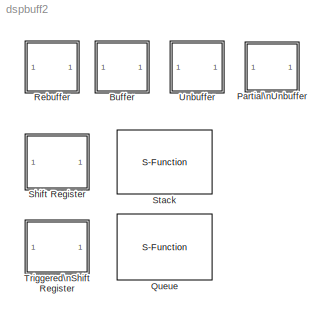
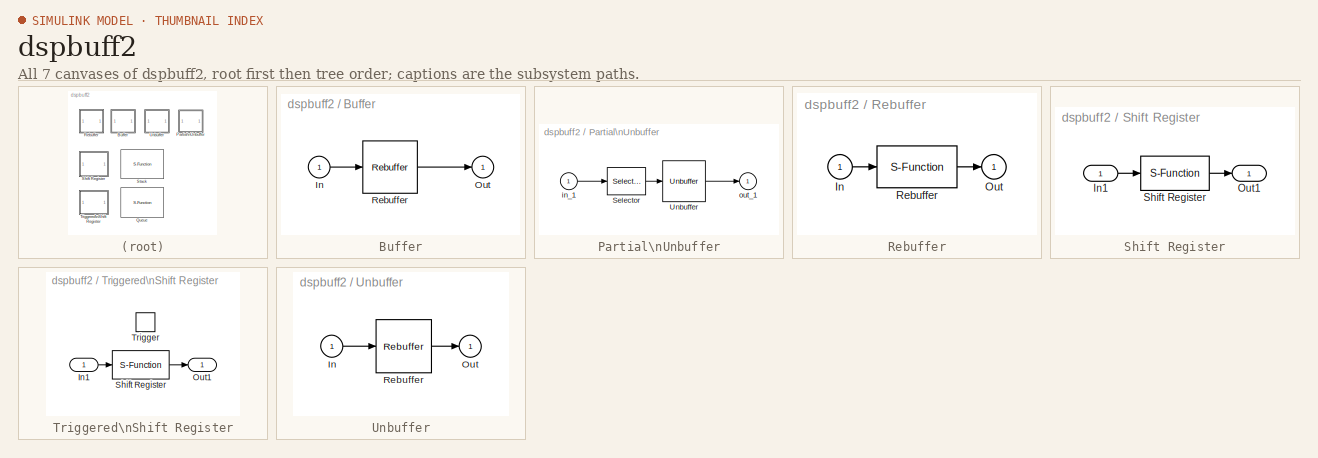
[diagram: thumbnail index - all 7 canvases of the model, root first then tree order]
MODEL dspbuff2
KIND library
BLOCK [SubSystem] Buffer
  MaskCallbackString = ||
  MaskDescription = Convert scalar samples to a frame output at a lower sample rate.
  MaskDisplay = plot(x,y)
  MaskEnableString = on,on,on
  MaskHelp = web(dspbhelp);
  MaskIconFrame = on
  MaskIconOpaque = on
  MaskIconRotate = none
  MaskIconUnits = autoscale
  MaskInitialization = [x,y] = dspblkbuff('icon');\n
  MaskPromptString = Buffer size:|Buffer overlap:|Initial conditions:
  MaskSelfModifiable = on
  MaskStyleString = edit,edit,edit
  MaskTunableValueString = off,off,off
  MaskType = Buffer
  MaskValueString = 32|0|0
  MaskVariables = N=@1;V=@2;ic=@3;
  MaskVisibilityString = on,on,on
  Ports = [1, 1]
  RTWFcnNameOpts = Auto
  RTWFileNameOpts = Auto
  RTWSystemCode = Auto
  ShowPortLabels = on
  TreatAsAtomicUnit = off
BLOCK [Inport] Buffer/In
  Interpolate = on
  Port = 1
BLOCK [Outport] Buffer/Out
  InitialOutput = 0
  OutputWhenDisabled = held
  Port = 1
BLOCK [Reference] Buffer/Rebuffer  REF=dspbuff2/Rebuffer
  N = N
  Ports = [1, 1]
  SourceBlock = dspbuff2/Rebuffer
  SourceType = Rebuffer
  Specify_Out_Size = on
  V = V
  frame = off
  ic = ic
  num_chans = 1
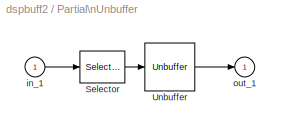
BLOCK [SubSystem] Partial\nUnbuffer
  MaskCallbackString = ||||
  MaskDescription = Convert selected portion of a frame to scalar samples output at a higher sample rate.
  MaskDisplay = plot(0,0,100,100,[62 68 68 72 68 68],[24 24 26 24 22 24],[36 36 56 49 56 49],[32 24 24 16 24 32],[20 52 52 20 20],[88 88 36 36 88],[28 44],[80 80],[28 44],[72 72],[28 44],[64 64],[28 44],[56 56],[28 44],[48 48],[72 76 76 80 76 76],[24 24 26 24 22 24],[80 84 84 88 84 84],[24 24 26 24 22 24],[],[],[],[],[88 88 92],[24 24 24])
  MaskEnableString = on,on,on,on,on
  MaskHelp = web(dspbhelp);
  MaskIconFrame = on
  MaskIconOpaque = on
  MaskIconRotate = none
  MaskIconUnits = autoscale
  MaskInitialization = elements=repmat(0:N:(num_chans-1)*N,N2-N1+1,1);\nelements=elements(:)';\nelements=elements + repmat(N1:N2,1,num_chans);
  MaskPromptString = Buffer size:|First output index:|Last output index:|Initial conditions:|Number of channels
  MaskStyleString = edit,edit,edit,edit,edit
  MaskTunableValueString = off,off,off,off,off
  MaskType = Partial Unbuffer
  MaskValueString = 32|13|20|0|1
  MaskVariables = N=@1;N1=@2;N2=@3;ic=@4;num_chans=@5;
  MaskVisibilityString = on,on,on,on,on
  Ports = [1, 1]
  RTWFcnNameOpts = Auto
  RTWFileNameOpts = Auto
  RTWSystemCode = Auto
  ShowPortLabels = on
  TreatAsAtomicUnit = off
BLOCK [Selector] Partial\nUnbuffer/Selector
  ColumnSrc = Internal
  Columns = 1
  ElementSrc = Internal
  Elements = elements
  InputPortWidth = N*num_chans
  InputType = Vector
  Ports = [1, 1]
  RowSrc = Internal
  Rows = 1
BLOCK [Reference] Partial\nUnbuffer/Unbuffer  REF=dspbuff2/Unbuffer
  Ports = [1, 1]
  SourceBlock = dspbuff2/Unbuffer
  SourceType = Unbuffer
  ic = ic
  num_chans = num_chans
BLOCK [Inport] Partial\nUnbuffer/in_1
  Interpolate = on
  Port = 1
BLOCK [Outport] Partial\nUnbuffer/out_1
  InitialOutput = 0
  OutputWhenDisabled = held
  Port = 1
BLOCK [S-Function] Queue
  FunctionName = sdspqueue
  MaskCallbackString = ||||||||
  MaskDescription = Implements a queue, or \"First In, First Out\" (FIFO) register.
  MaskDisplay = disp('Queue');\n\nport_label('input',si(1).port, si(1).txt);\nport_label('input',si(2).port, si(2).txt);\nport_label('input',si(3).port, si(3).txt);\nport_label('input',si(4).port, si(4).txt);\n\nport_label('output',so(1).port, so(1).txt);\nport_label('output',so(2).port, so(2).txt);\nport_label('output',so(3).port, so(3).txt);\nport_label('output',so(4).port, so(4).txt);\n
  MaskEnableString = on,on,on,on,on,on,on,on,on
  MaskHelp = web(dspbhelp);\n
  MaskIconFrame = on
  MaskIconOpaque = on
  MaskIconRotate = port
  MaskIconUnits = normalized
  MaskInitialization = [si,so] = dspblkstack('icon', clr,eso,fso,nso);
  MaskPromptString = Register size:|Trigger type:|Push onto full register:|Pop empty register:|Empty register output|Full register output|Output number of register entries|Clear input|Clear output port on reset
  MaskSelfModifiable = on
  MaskStyleString = edit,popup(Rising edge|Falling edge|Either edge),popup(Dynamic reallocation|Ignore|Warning|Error),popup(Ignore|Warning|Error),checkbox,checkbox,checkbox,checkbox,checkbox
  MaskTunableValueString = off,off,off,on,off,off,off,off,on
  MaskType = Queue
  MaskValueString = 8|Rising edge|Dynamic reallocation|Warning|off|off|off|off|off
  MaskVariables = depth=@1;trigger=@2;overflow=@3;pes=@4;eso=@5;fso=@6;nso=@7;clr=@8;clrOutport=@9;
  MaskVisibilityString = on,on,on,on,on,on,on,on,on
  Parameters = trigger,depth,overflow,pes,eso,fso,nso,clr,clrOutport
  PortCounts = []
  Ports = [3, 1]
BLOCK [SubSystem] Rebuffer
  MaskCallbackString = dspblkrebuff||||dspblkrebuff|
  MaskDescription = Convert a frame to a smaller or larger size with optional overlap.\nFor calculation of sample delay, see the rebuffer_delay function.
  MaskDisplay = disp('Rebuffer')
  MaskEnableString = on,on,on,on,on,off
  MaskHelp = web(dspbhelp);
  MaskIconFrame = on
  MaskIconOpaque = on
  MaskIconRotate = none
  MaskIconUnits = autoscale
  MaskPromptString = Specify output buffer size|Output buffer size (per channel):|Buffer overlap:|Initial conditions:|Frame-based inputs|Number of channels:
  MaskSelfModifiable = on
  MaskStyleString = checkbox,edit,edit,edit,checkbox,edit
  MaskTunableValueString = on,off,off,off,on,off
  MaskType = Rebuffer
  MaskValueString = on|64|0|0|off|1
  MaskVariables = Specify_Out_Size=@1;N=@2;V=@3;ic=@4;frame=@5;num_chans=@6;
  MaskVisibilityString = on,on,on,on,on,on
  Ports = [1, 1]
  RTWFcnNameOpts = Auto
  RTWFileNameOpts = Auto
  RTWSystemCode = Auto
  ShowPortLabels = on
  TreatAsAtomicUnit = off
BLOCK [Inport] Rebuffer/In
  Interpolate = on
  Port = 1
BLOCK [Outport] Rebuffer/Out
  InitialOutput = 0
  OutputWhenDisabled = held
  Port = 1
BLOCK [S-Function] Rebuffer/Rebuffer
  FunctionName = sdsprebuff
  Parameters = Specify_Out_Size,N,V,ic,frame,num_chans
  PortCounts = []
  Ports = [1, 1]
BLOCK [SubSystem] Shift Register
  MaskCallbackString = |
  MaskDescription = Shift contents of memory register and store input sample into start of register.  Vector inputs are stored into independent shift registers.
  MaskDisplay = disp('Shift\\nRegister');
  MaskEnableString = on,on
  MaskHelp = web(dspbhelp);\n
  MaskIconFrame = on
  MaskIconOpaque = on
  MaskIconRotate = none
  MaskIconUnits = autoscale
  MaskPromptString = Register size:|Initial condition:
  MaskStyleString = edit,edit
  MaskTunableValueString = off,off
  MaskType = Shift Register
  MaskValueString = 64|0
  MaskVariables = siz=@1;ic=@2;
  MaskVisibilityString = on,on
  Ports = [1, 1]
  RTWFcnNameOpts = Auto
  RTWFileNameOpts = Auto
  RTWSystemCode = Auto
  ShowPortLabels = on
  TreatAsAtomicUnit = off
BLOCK [Inport] Shift Register/In1
  Interpolate = on
  Port = 1
BLOCK [Outport] Shift Register/Out1
  InitialOutput = 0
  OutputWhenDisabled = held
  Port = 1
BLOCK [S-Function] Shift Register/Shift Register
  FunctionName = sdspsreg
  Parameters = siz,ic
  PortCounts = []
  Ports = [1, 1]
BLOCK [S-Function] Stack
  FunctionName = sdspstack
  MaskCallbackString = ||||||||
  MaskDescription = Implements a stack, or \"Last In, First Out\" (LIFO) register.
  MaskDisplay = disp('Stack');\n\nport_label('input',si(1).port, si(1).txt);\nport_label('input',si(2).port, si(2).txt);\nport_label('input',si(3).port, si(3).txt);\nport_label('input',si(4).port, si(4).txt);\n\nport_label('output',so(1).port, so(1).txt);\nport_label('output',so(2).port, so(2).txt);\nport_label('output',so(3).port, so(3).txt);\nport_label('output',so(4).port, so(4).txt);\n
  MaskEnableString = on,on,on,on,on,on,on,on,on
  MaskHelp = web(dspbhelp);\n
  MaskIconFrame = on
  MaskIconOpaque = on
  MaskIconRotate = port
  MaskIconUnits = normalized
  MaskInitialization = [si,so] = dspblkstack('icon', clr,eso,fso,nso);\n
  MaskPromptString = Stack depth:|Trigger type:|Push full stack:|Pop empty stack:|Empty stack output|Full stack output|Output number of stack entries|Clear input|Clear output port on reset
  MaskSelfModifiable = on
  MaskStyleString = edit,popup(Rising edge|Falling edge|Either edge),popup(Dynamic reallocation|Ignore|Warning|Error),popup(Ignore|Warning|Error),checkbox,checkbox,checkbox,checkbox,checkbox
  MaskTunableValueString = off,off,off,on,off,off,off,off,on
  MaskType = Stack
  MaskValueString = 8|Rising edge|Dynamic reallocation|Warning|off|off|off|off|off
  MaskVariables = depth=@1;trigger=@2;overflow=@3;pes=@4;eso=@5;fso=@6;nso=@7;clr=@8;clrOutport=@9;
  MaskVisibilityString = on,on,on,on,on,on,on,on,on
  Parameters = trigger,depth,overflow,pes,eso,fso,nso,clr,clrOutport
  PortCounts = []
  Ports = [3, 1]
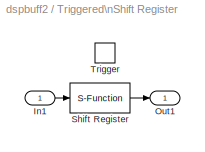
BLOCK [SubSystem] Triggered\nShift Register
  MaskCallbackString = ||
  MaskDescription = Shift contents of memory register and store input sample into start of register when trigger event occurs.  Vector inputs are stored into independent shift registers.
  MaskDisplay = disp('Shift\\nRegister');
  MaskEnableString = on,on,on
  MaskHelp = web(dspbhelp);\n
  MaskIconFrame = on
  MaskIconOpaque = off
  MaskIconRotate = none
  MaskIconUnits = autoscale
  MaskInitialization = switch trig\ncase 1, s='rising';\ncase 2, s='falling';\ncase 3, s='either';\nend\nset_param([gcb '/Trigger'],'triggertype',s);\n
  MaskPromptString = Trigger type:|Register size:|Initial condition:
  MaskSelfModifiable = on
  MaskStyleString = popup(Rising edge|Falling edge|Either edge),edit,edit
  MaskTunableValueString = off,off,off
  MaskType = Triggered Shift Register
  MaskValueString = Rising edge|64|0
  MaskVariables = trig=@1;siz=@2;ic=@3;
  MaskVisibilityString = on,on,on
  Ports = [1, 1, 0, 1]
  RTWFcnNameOpts = Auto
  RTWFileNameOpts = Auto
  RTWSystemCode = Auto
  ShowPortLabels = on
  TreatAsAtomicUnit = on
BLOCK [Inport] Triggered\nShift Register/In1
  Interpolate = on
  Port = 1
BLOCK [Outport] Triggered\nShift Register/Out1
  InitialOutput = ic
  OutputWhenDisabled = held
  Port = 1
BLOCK [S-Function] Triggered\nShift Register/Shift Register
  FunctionName = sdspsreg
  Parameters = siz,ic
  PortCounts = []
  Ports = [1, 1]
BLOCK [TriggerPort] Triggered\nShift Register/Trigger
  OutputDataType = auto
  ShowOutputPort = off
  TriggerType = rising
BLOCK [SubSystem] Unbuffer
  MaskCallbackString = |
  MaskDescription = Convert a frame to scalar samples output at a higher sample rate.
  MaskDisplay = plot(0,0,100,100,[62 68 68 72 68 68],[24 24 26 24 22 24],[36 36 56 49 56 49],[32 24 24 16 24 32],[20 52 52 20 20],[88 88 36 36 88],[28 44],[80 80],[28 44],[72 72],[28 44],[64 64],[28 44],[56 56],[28 44],[48 48],[72 76 76 80 76 76],[24 24 26 24 22 24],[80 84 84 88 84 84],[24 24 26 24 22 24],[],[],[],[],[88 88 92],[24 24 24])
  MaskEnableString = on,on
  MaskHelp = web(dspbhelp);
  MaskIconFrame = on
  MaskIconOpaque = on
  MaskIconRotate = none
  MaskIconUnits = autoscale
  MaskPromptString = Initial conditions:|Number of channels:
  MaskStyleString = edit,edit
  MaskTunableValueString = off,off
  MaskType = Unbuffer
  MaskValueString = 0|1
  MaskVariables = ic=@1;num_chans=@2;
  MaskVisibilityString = on,on
  Ports = [1, 1]
  RTWFcnNameOpts = Auto
  RTWFileNameOpts = Auto
  RTWSystemCode = Auto
  ShowPortLabels = on
  TreatAsAtomicUnit = off
BLOCK [Inport] Unbuffer/In
  Interpolate = on
  Port = 1
BLOCK [Outport] Unbuffer/Out
  InitialOutput = 0
  OutputWhenDisabled = held
  Port = 1
BLOCK [Reference] Unbuffer/Rebuffer  REF=dspbuff2/Rebuffer
  N = 1
  Ports = [1, 1]
  SourceBlock = dspbuff2/Rebuffer
  SourceType = Rebuffer
  Specify_Out_Size = on
  V = 0
  frame = on
  ic = ic
  num_chans = num_chans
LINE Buffer/In:1 -> Buffer/Rebuffer:1
LINE Buffer/Rebuffer:1 -> Buffer/Out:1
LINE Partial\nUnbuffer/Selector:1 -> Partial\nUnbuffer/Unbuffer:1
LINE Partial\nUnbuffer/Unbuffer:1 -> Partial\nUnbuffer/out_1:1
LINE Partial\nUnbuffer/in_1:1 -> Partial\nUnbuffer/Selector:1
LINE Rebuffer/In:1 -> Rebuffer/Rebuffer:1
LINE Rebuffer/Rebuffer:1 -> Rebuffer/Out:1
LINE Shift Register/In1:1 -> Shift Register/Shift Register:1
LINE Shift Register/Shift Register:1 -> Shift Register/Out1:1
LINE Triggered\nShift Register/In1:1 -> Triggered\nShift Register/Shift Register:1
LINE Triggered\nShift Register/Shift Register:1 -> Triggered\nShift Register/Out1:1
LINE Unbuffer/In:1 -> Unbuffer/Rebuffer:1
LINE Unbuffer/Rebuffer:1 -> Unbuffer/Out:1
